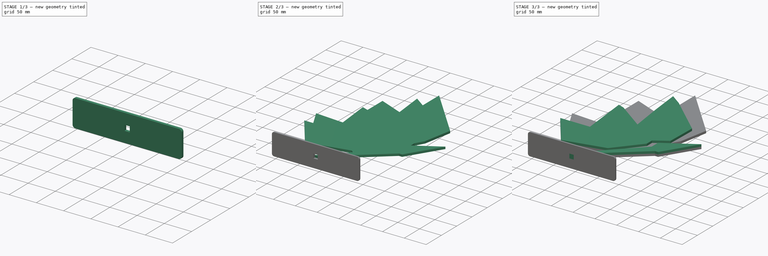
[diagram: build sequence overview — one tinted view per stage of 3, left to right]
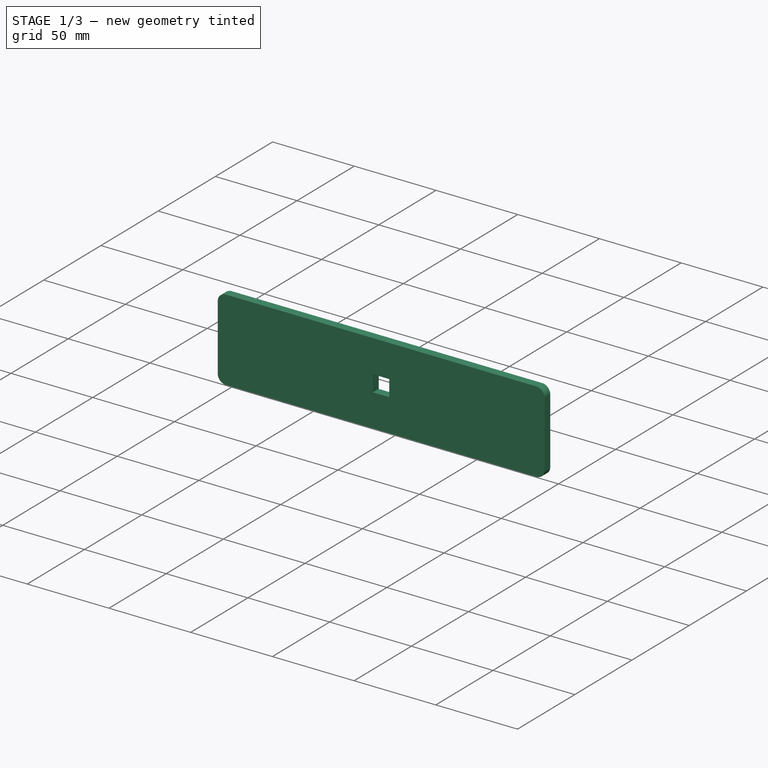
[diagram: stage 1 of 3 — iso view after this stage's code; geometry added in this stage tinted green]
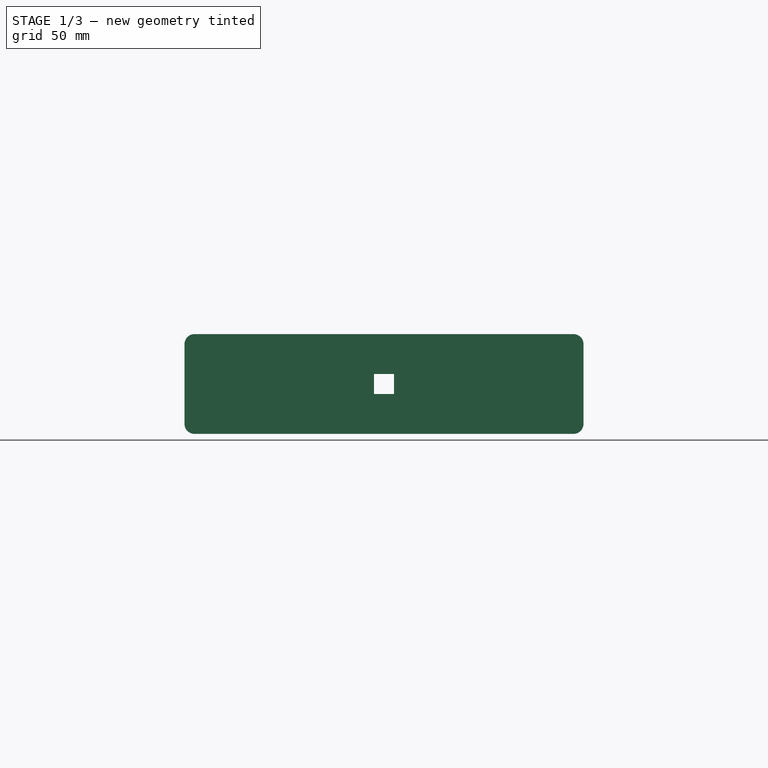
[diagram: stage 1 of 3 — front view after this stage's code; geometry added in this stage tinted green]
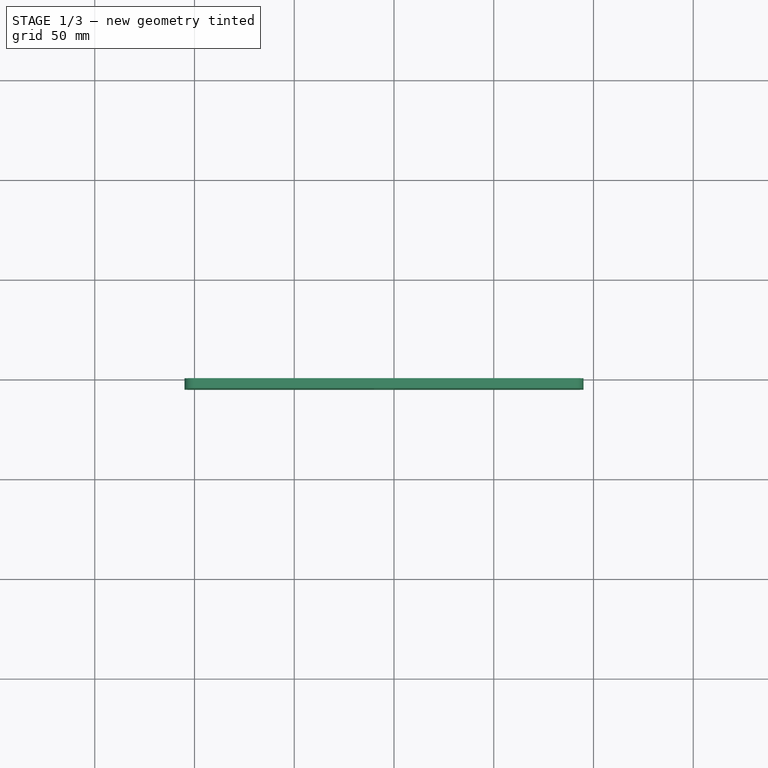
[diagram: stage 1 of 3 — top view after this stage's code; geometry added in this stage tinted green]
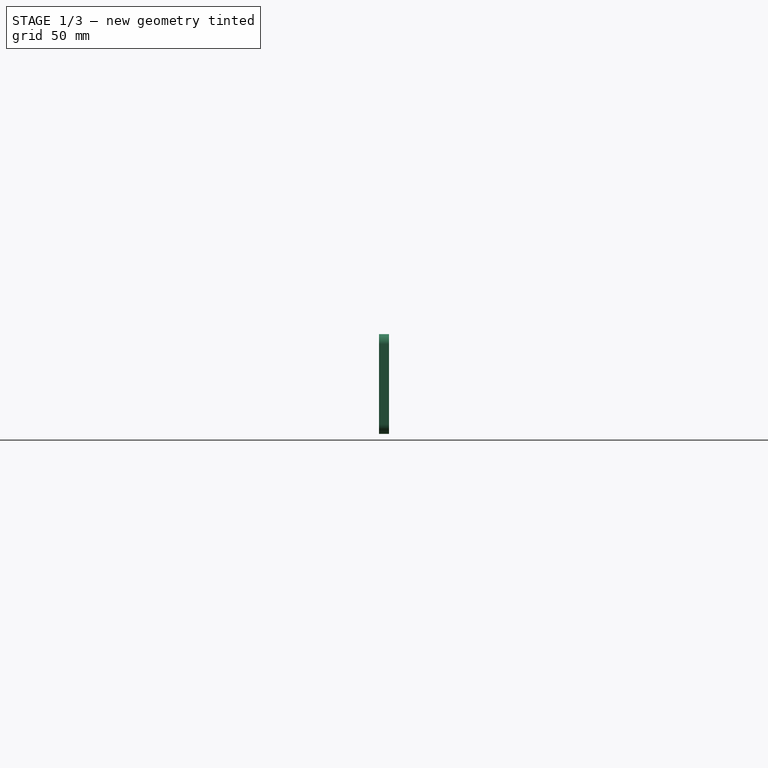
[diagram: stage 1 of 3 — right view after this stage's code; geometry added in this stage tinted green]
FCSTD DOCUMENT  (FreeCAD 0.21R33771 (Git))
Label: Project_Wingman_Monarch_Emblem
License: All rights reserved
LicenseURL: https://en.wikipedia.org/wiki/All_rights_reserved
objects: Sketcher::SketchObject×4, PartDesign::Pad×4, PartDesign::Body×2, PartDesign::Fillet×2, Image::ImagePlane×1
note: 18 computed .brp shape members not serialized (recipe doc carries the construction recipe); baked Part::Feature solids carry a one-line shape summary decoded from their .brp

FEATURE [PartDesign::Body] Body  label="MonarchBody"
  Group = -> [Sketch,Pad,Sketch001,Pad001,Sketch002,Pad002]
  Origin = -> Origin
  Tip = -> Pad002
FEATURE [Sketcher::SketchObject] Sketch003
  FullyConstrained = true
  MapMode = 5
  Placement = pos=(0,0,0) rot=(1,0,0;1.5708rad)
  Support = -> [XZ_Plane001]
  sketch-geometry (9):
    g0: LineSegment StartX=-2.7e-15 StartY=0 StartZ=0 EndX=-10 EndY=0 EndZ=0
    g1: LineSegment StartX=-10 StartY=0 StartZ=0 EndX=-10 EndY=10 EndZ=0
    g2: LineSegment StartX=-10 StartY=10 StartZ=0 EndX=-3.6e-15 EndY=10 EndZ=0
    g3: LineSegment StartX=-2.7e-15 StartY=10 StartZ=0 EndX=-2.7e-15 EndY=0 EndZ=0
    g4: GeomPoint X=-5 Y=5 Z=0
    g5: LineSegment StartX=-105 StartY=-20 StartZ=0 EndX=95 EndY=-20 EndZ=0
    g6: LineSegment StartX=95 StartY=-20 StartZ=0 EndX=95 EndY=30 EndZ=0
    g7: LineSegment StartX=95 StartY=30 StartZ=0 EndX=-105 EndY=30 EndZ=0
    g8: LineSegment StartX=-105 StartY=30 StartZ=0 EndX=-105 EndY=-20 EndZ=0
  constraints (23):
    c: Coincident(g0,g1)
    c: Coincident(g1,g2)
    c: Coincident(g2,g3)
    c: Coincident(g3,g0)
    c: Horizontal(g0)
    c: Horizontal(g2)
    c: Vertical(g1)
    c: Vertical(g3)
    c: Coincident(g0,g-1)
    c: Equal(g1,g2)
    c: DistanceX(g0,g0) = 10
    c: Symmetric(g1,g0,g4)
    c: Coincident(g5,g6)
    c: Coincident(g6,g7)
    c: Coincident(g7,g8)
    c: Coincident(g8,g5)
    c: Horizontal(g5)
    c: Horizontal(g7)
    c: Vertical(g6)
    c: Vertical(g8)
    c: Symmetric(g7,g5,g4)
    c: DistanceX(g5,g5) = 200
    c: DistanceY(g6,g6) = 50
FEATURE [PartDesign::Pad] Pad003  label="Stand"
  Direction = (0,-1,2e-16)
  Length = 5
  Length2 = 10
  Placement = pos=(0,0,0) rot=(1,0,0;1.5708rad)
  Profile = -> Sketch003
  ReferenceAxis = -> Sketch003 [N_Axis]
  Type = 0
FEATURE [PartDesign::Fillet] Fillet  label="CornerFillet"
  Base = -> Pad003 [Edge5,Edge8,Edge1,Edge2]
  BaseFeature = -> Pad003
  Placement = pos=(0,0,0) rot=(1,0,0;1.5708rad)
  Radius = 5
  SupportTransform = false
  UseAllEdges = false
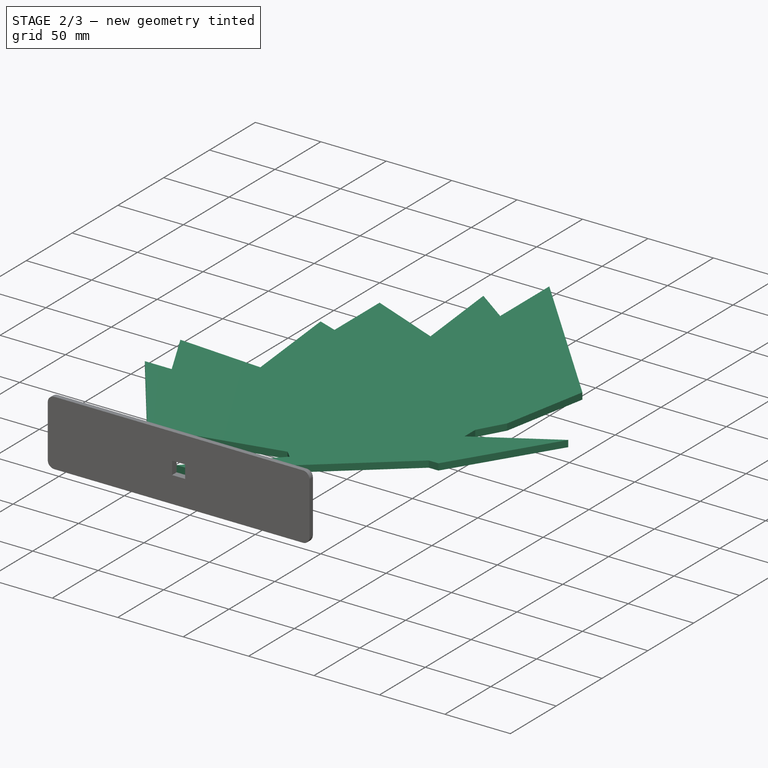
[diagram: stage 2 of 3 — iso view after this stage's code; geometry added in this stage tinted green]
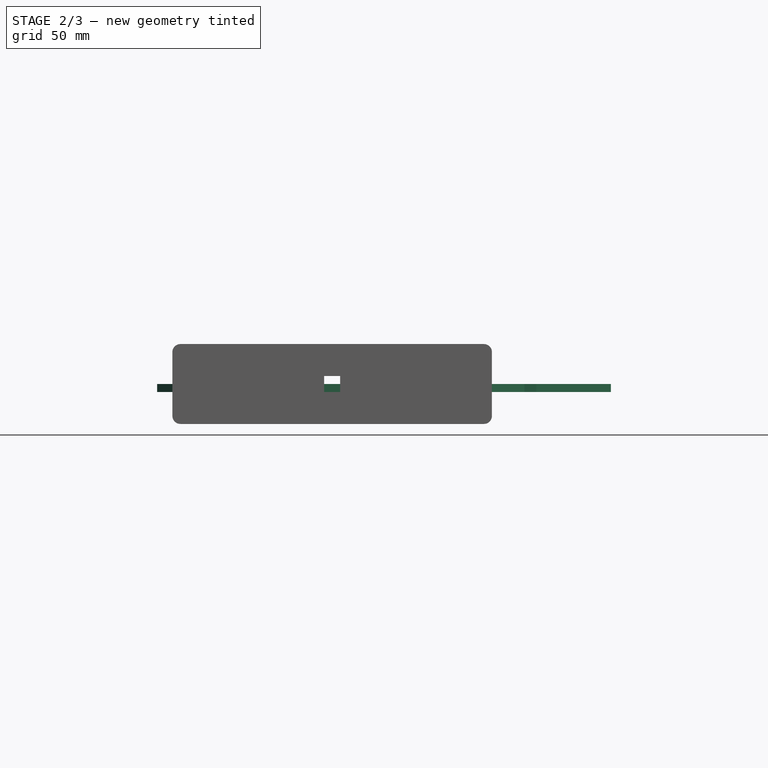
[diagram: stage 2 of 3 — front view after this stage's code; geometry added in this stage tinted green]
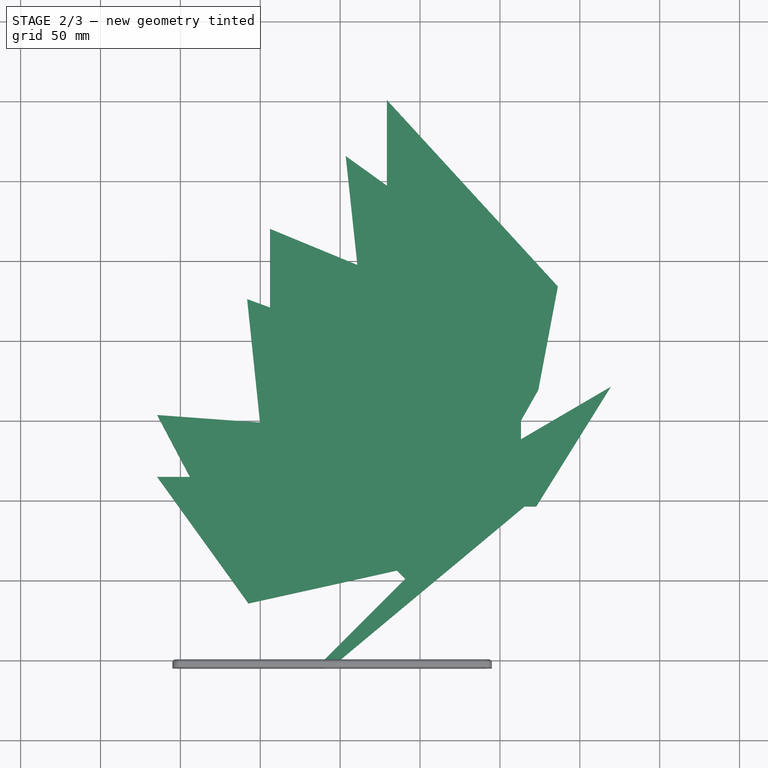
[diagram: stage 2 of 3 — top view after this stage's code; geometry added in this stage tinted green]
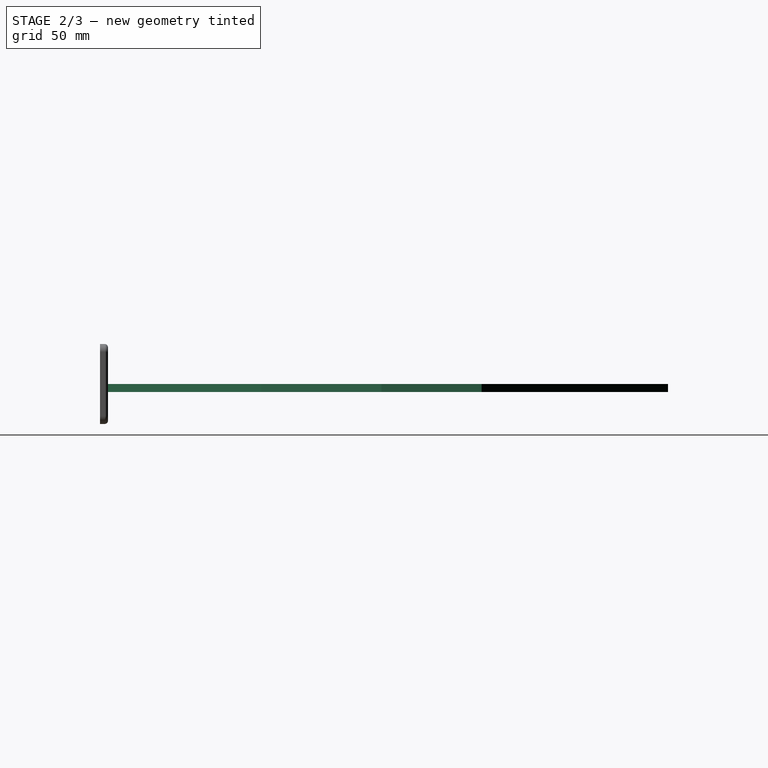
[diagram: stage 2 of 3 — right view after this stage's code; geometry added in this stage tinted green]
FEATURE [Image::ImagePlane] k1y02ft4k2461  label="Reference"
  Placement = pos=(27.5,175.7,0) rot=(0,0,1;0rad)
  XSize = 285.714
  YSize = 351.852
FEATURE [Sketcher::SketchObject] Sketch
  FullyConstrained = true
  MapMode = 5
  Support = -> [XY_Plane]
  sketch-geometry (23):
    g0: LineSegment StartX=0 StartY=0 StartZ=0 EndX=115.367 EndY=96.0859 EndZ=0
    g1: LineSegment StartX=115.367 StartY=96.0859 StartZ=0 EndX=122.707 EndY=96.0859 EndZ=0
    g2: LineSegment StartX=122.707 StartY=96.0859 StartZ=0 EndX=169.442 EndY=171.11 EndZ=0
    g3: LineSegment StartX=169.442 StartY=171.11 StartZ=0 EndX=113.177 EndY=138.205 EndZ=0
    g4: LineSegment StartX=113.177 StartY=138.205 StartZ=0 EndX=113.177 EndY=149.905 EndZ=0
    g5: LineSegment StartX=113.177 StartY=149.905 StartZ=0 EndX=124.051 EndY=169.157 EndZ=0
    g6: LineSegment StartX=124.051 StartY=169.157 StartZ=0 EndX=136.266 EndY=233.864 EndZ=0
    g7: LineSegment StartX=136.266 StartY=233.864 StartZ=0 EndX=29.2523 EndY=350.567 EndZ=0
    g8: LineSegment StartX=29.2523 StartY=350.567 StartZ=0 EndX=29.2523 EndY=296.967 EndZ=0
    g9: LineSegment StartX=29.2523 StartY=296.967 StartZ=0 EndX=3.47352 EndY=315.484 EndZ=0
    g10: LineSegment StartX=3.47352 StartY=315.484 StartZ=0 EndX=10.7709 EndY=247.314 EndZ=0
    g11: LineSegment StartX=10.7709 StartY=247.314 StartZ=0 EndX=-43.9148 EndY=269.909 EndZ=0
    g12: LineSegment StartX=-43.9148 StartY=269.909 StartZ=0 EndX=-43.9148 EndY=220.669 EndZ=0
    g13: LineSegment StartX=-43.9148 StartY=220.669 StartZ=0 EndX=-58.2298 EndY=225.956 EndZ=0
    g14: LineSegment StartX=-58.2298 StartY=225.956 StartZ=0 EndX=-50.1598 EndY=148.656 EndZ=0
    g15: LineSegment StartX=-50.1598 StartY=148.656 StartZ=0 EndX=-114.557 EndY=153.374 EndZ=0
    g16: LineSegment StartX=-114.557 StartY=153.374 StartZ=0 EndX=-94.0801 EndY=114.667 EndZ=0
    g17: LineSegment StartX=-94.0801 StartY=114.667 StartZ=0 EndX=-114.54 EndY=114.667 EndZ=0
    g18: LineSegment StartX=-114.54 StartY=114.667 StartZ=0 EndX=-57.3838 EndY=35.4175 EndZ=0
    g19: LineSegment StartX=-57.3838 StartY=35.4175 StartZ=0 EndX=35.5347 EndY=56.0341 EndZ=0
    g20: LineSegment StartX=35.5347 StartY=56.0341 StartZ=0 EndX=40.7844 EndY=50.7844 EndZ=0
    g21: LineSegment StartX=40.7844 StartY=50.7844 StartZ=0 EndX=-10 EndY=0 EndZ=0
    g22: LineSegment StartX=-10 StartY=0 StartZ=0 EndX=0 EndY=0 EndZ=0
  constraints (68):
    c: Coincident(g-1,g0)
    c: Coincident(g0,g1)
    c: Horizontal(g1)
    c: Coincident(g1,g2)
    c: Coincident(g2,g3)
    c: Coincident(g3,g4)
    c: Vertical(g4)
    c: Coincident(g4,g5)
    c: Coincident(g5,g6)
    c: Coincident(g6,g7)
    c: Coincident(g7,g8)
    c: Vertical(g8)
    c: Coincident(g8,g9)
    c: Coincident(g9,g10)
    c: Coincident(g10,g11)
    c: Coincident(g11,g12)
    c: Vertical(g12)
    c: Coincident(g12,g13)
    c: Coincident(g13,g14)
    c: Coincident(g14,g15)
    c: Coincident(g15,g16)
    c: Coincident(g16,g17)
    c: Horizontal(g17)
    c: Coincident(g17,g18)
    c: Coincident(g18,g19)
    c: Coincident(g19,g20)
    c: Coincident(g20,g21)
    c: PointOnObject(g21,g-1)
    c: Coincident(g21,g22)
    c: Coincident(g22,g0)
    c: Angle(g20,g21) = 1.5708
    c: Angle(g22,g21) = 0.785398
    c: Angle(g19,g20) = 2.13785
    c: Distance(g21) = 71.82
    c: Distance(g22) = 10
    c: Angle(g0,g22) = 2.44713
    c: Distance(g0) = 150.14
    c: Angle(g2,g1) = 2.12791
    c: Distance(g2) = 88.39
    c: Angle(g3,g2) = 0.484503
    c: Distance(g3) = 65.18
    c: Angle(g4,g5) = 2.62742
    c: Distance(g4) = 11.7
    c: Distance(g5) = 22.11
    c: Angle(g6,g5) = 2.81399
    c: Distance(g6) = 65.85
    c: Angle(g7,g6) = 2.2129
    c: Distance(g7) = 158.34
    c: Distance(g8) = 53.6
    c: Distance(g1) = 7.34
    c: Angle(g8,g9) = 0.947888
    c: Angle(g10,g9) = 0.841249
    c: Distance(g9) = 31.74
    c: Angle(g10,g11) = 1.07233
    c: Distance(g10) = 68.56
    c: Distance(g11) = 59.17
    c: Distance(g12) = 49.24
    c: Angle(g12,g13) = 1.21702
    c: Distance(g13) = 15.26
    c: Angle(g14,g13) = 1.113
    c: Distance(g14) = 77.72
    c: Angle(g14,g15) = 1.39365
    c: Distance(g15) = 64.57
    c: Angle(g16,g15) = 1.01107
    c: Distance(g16) = 43.79
    c: Angle(g18,g17) = 0.945968
    c: Distance(g17) = 20.46
    c: Distance(g18) = 97.71
FEATURE [PartDesign::Pad] Pad  label="MainBody"
  Direction = (0,0,1)
  Length = 5
  Length2 = 10
  Profile = -> Sketch
  ReferenceAxis = -> Sketch [N_Axis]
  Type = 0
FEATURE [PartDesign::Fillet] Fillet001  label="TopFillet"
  Base = -> Fillet [Edge6,Edge1,Edge5,Edge7,Edge9,Edge11,Edge10,Edge8]
  BaseFeature = -> Fillet
  Placement = pos=(0,0,0) rot=(1,0,0;1.5708rad)
  Radius = 2
  SupportTransform = false
  UseAllEdges = false
FEATURE [PartDesign::Body] Body001  label="StandBody"
  Group = -> [Sketch003,Pad003,Fillet,Fillet001]
  Origin = -> Origin001
  Tip = -> Fillet001
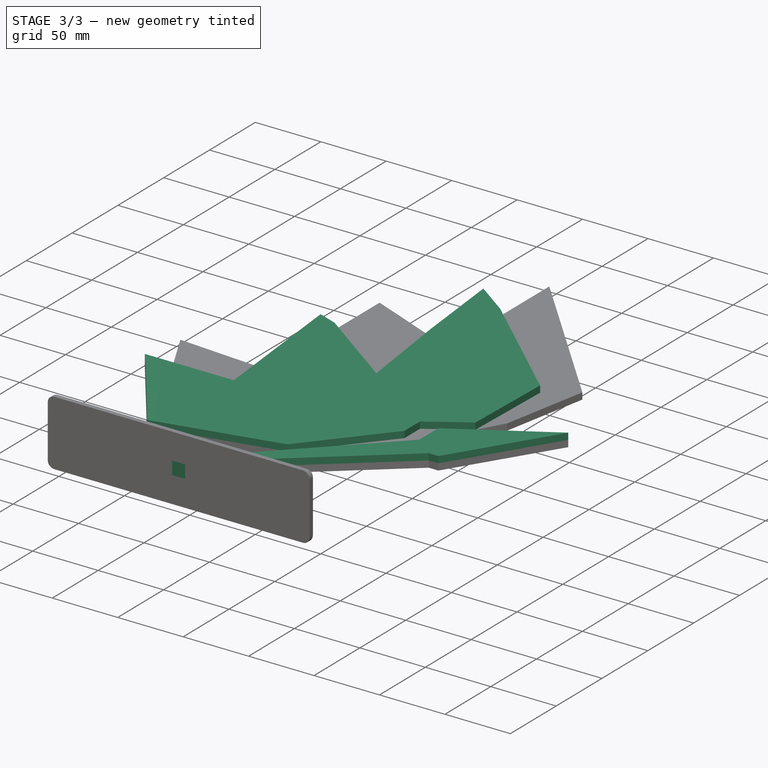
[diagram: stage 3 of 3 — iso view after this stage's code; geometry added in this stage tinted green]
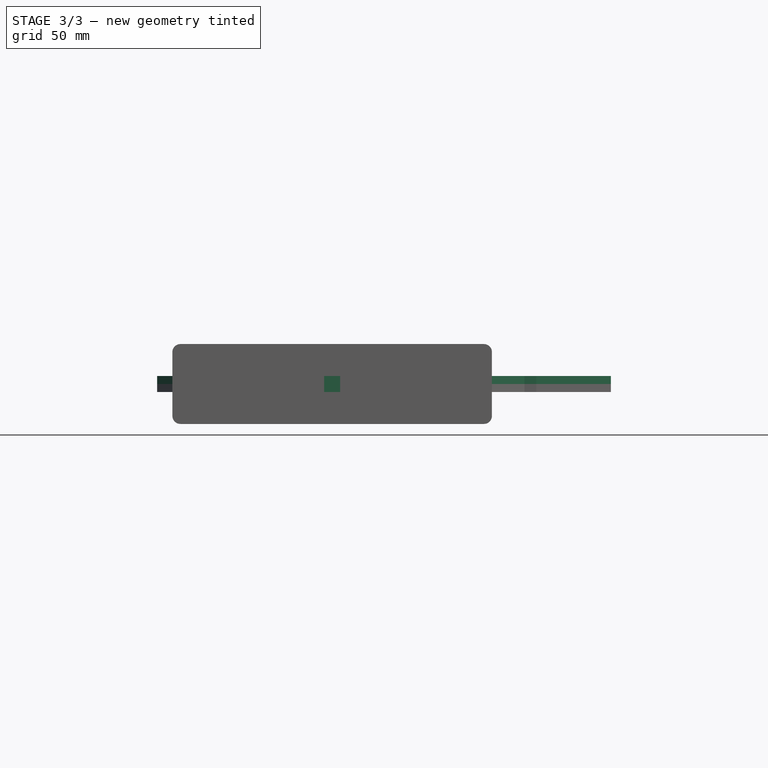
[diagram: stage 3 of 3 — front view after this stage's code; geometry added in this stage tinted green]
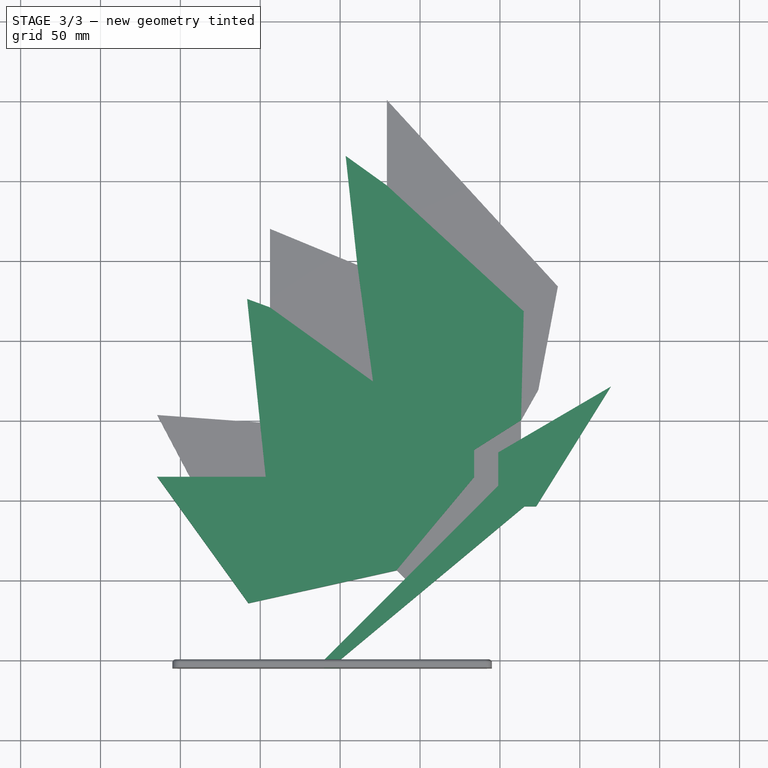
[diagram: stage 3 of 3 — top view after this stage's code; geometry added in this stage tinted green]
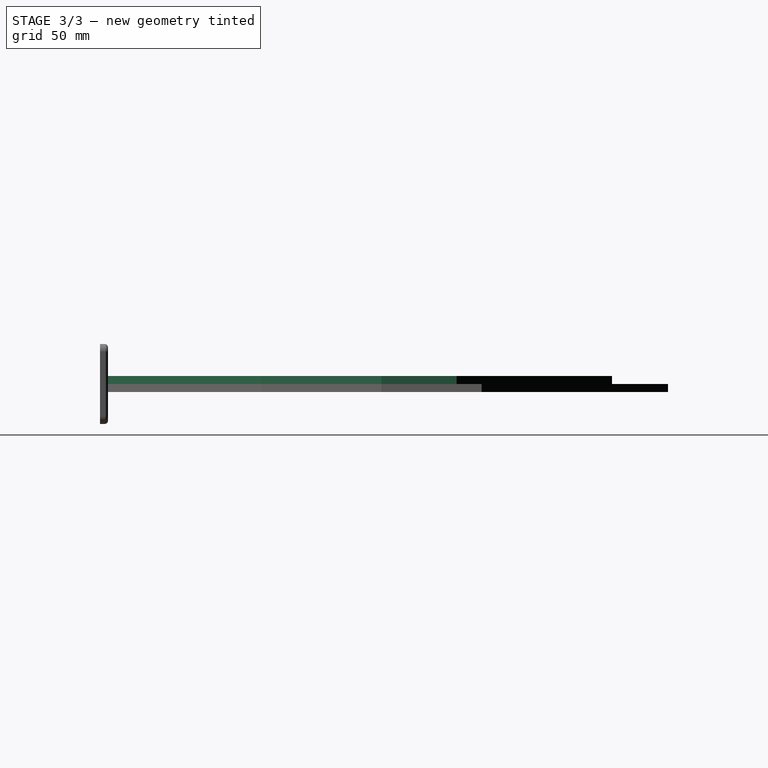
[diagram: stage 3 of 3 — right view after this stage's code; geometry added in this stage tinted green]
FEATURE [Sketcher::SketchObject] Sketch001
  ExternalGeometry = -> [Pad]
  FullyConstrained = true
  MapMode = 5
  Placement = pos=(0,0,5) rot=(0,0,1;0rad)
  Support = -> [Pad]
  sketch-geometry (23):
    g0: LineSegment StartX=29.2523 StartY=296.967 StartZ=0 EndX=3.47352 EndY=315.484 EndZ=0
    g1: LineSegment StartX=3.47352 StartY=315.484 StartZ=0 EndX=10.7709 EndY=247.314 EndZ=0
    g2: LineSegment StartX=-43.9148 StartY=220.669 StartZ=0 EndX=-58.2298 EndY=225.956 EndZ=0
    g3: LineSegment StartX=-58.2298 StartY=225.956 StartZ=0 EndX=-50.1598 EndY=148.656 EndZ=0
    g4: LineSegment StartX=-114.54 StartY=114.667 StartZ=0 EndX=-94.0801 EndY=114.667 EndZ=0
    g5: LineSegment StartX=-94.0801 StartY=114.667 StartZ=0 EndX=-46.6113 EndY=114.667 EndZ=0
    g6: LineSegment StartX=-50.1598 StartY=148.656 StartZ=0 EndX=-46.6113 EndY=114.667 EndZ=0
    g7: LineSegment StartX=-43.9148 StartY=220.669 StartZ=0 EndX=20.584 EndY=174.254 EndZ=0
    g8: LineSegment StartX=10.7709 StartY=247.314 StartZ=0 EndX=20.584 EndY=174.254 EndZ=0
    g9: LineSegment StartX=29.2523 StartY=296.967 StartZ=0 EndX=114.882 EndY=218.226 EndZ=0
    g10: LineSegment StartX=114.882 StartY=218.226 StartZ=0 EndX=113.192 EndY=150.027 EndZ=0
    g11: LineSegment StartX=-114.54 StartY=114.667 StartZ=0 EndX=-57.3838 EndY=35.4175 EndZ=0
    g12: LineSegment StartX=-57.3838 StartY=35.4175 StartZ=0 EndX=35.1939 EndY=56.0602 EndZ=0
    g13: LineSegment StartX=35.1939 StartY=56.0602 StartZ=0 EndX=83.884 EndY=114.479 EndZ=0
    g14: LineSegment StartX=83.884 StartY=114.479 StartZ=0 EndX=83.884 EndY=131.449 EndZ=0
    g15: LineSegment StartX=83.884 StartY=131.449 StartZ=0 EndX=113.192 EndY=150.027 EndZ=0
    g16: LineSegment StartX=-10 StartY=0 StartZ=0 EndX=0 EndY=0 EndZ=0
    g17: LineSegment StartX=0 StartY=0 StartZ=0 EndX=115.367 EndY=96.0859 EndZ=0
    g18: LineSegment StartX=115.367 StartY=96.0859 StartZ=0 EndX=122.707 EndY=96.0859 EndZ=0
    g19: LineSegment StartX=122.707 StartY=96.0859 StartZ=0 EndX=169.442 EndY=171.11 EndZ=0
    g20: LineSegment StartX=169.442 StartY=171.11 StartZ=0 EndX=98.9599 EndY=129.891 EndZ=0
    g21: LineSegment StartX=98.9599 StartY=129.891 StartZ=0 EndX=98.9599 EndY=109.098 EndZ=0
    g22: LineSegment StartX=98.9599 StartY=109.098 StartZ=0 EndX=-10 EndY=0 EndZ=0
  constraints (55):
    c: Coincident(g0,g-8)
    c: Coincident(g0,g-8)
    c: Coincident(g1,g0)
    c: Coincident(g1,g-7)
    c: Coincident(g2,g-6)
    c: Coincident(g2,g-6)
    c: Coincident(g3,g2)
    c: Coincident(g3,g-5)
    c: Coincident(g4,g-4)
    c: Coincident(g4,g-4)
    c: Coincident(g5,g4)
    c: Horizontal(g5)
    c: Coincident(g6,g3)
    c: Coincident(g6,g5)
    c: Parallel(g6,g3)
    c: Coincident(g7,g2)
    c: Coincident(g8,g1)
    c: Coincident(g8,g7)
    c: Angle(g8,g1) = 3.11471
    c: Angle(g2,g7) = 2.87159
    c: Coincident(g9,g0)
    c: Coincident(g10,g9)
    c: Angle(g0,g9) = 3.02099
    c: Angle(g9,g10) = 2.28952
    c: Coincident(g11,g4)
    c: Coincident(g11,g-3)
    c: Coincident(g11,g12)
    c: Coincident(g12,g13)
    c: Coincident(g13,g14)
    c: Vertical(g14)
    c: Coincident(g14,g15)
    c: Coincident(g15,g10)
    c: Angle(g10,g15) = 2.16054
    c: Angle(g13,g12) = 2.485
    c: Angle(g12,g11) = 1.97624
    c: Distance(g14) = 16.97
    c: Distance(g9) = 116.33
    c: Distance(g10) = 68.22
    c: Distance(g15) = 34.7
    c: Coincident(g-9,g16)
    c: Coincident(g16,g-10)
    c: Coincident(g16,g17)
    c: Coincident(g17,g-11)
    c: Coincident(g17,g18)
    c: Coincident(g18,g-12)
    c: Coincident(g18,g19)
    c: Coincident(g19,g-13)
    c: Coincident(g19,g20)
    c: PointOnObject(g-13,g20)
    c: Coincident(g21,g20)
    c: Vertical(g21)
    c: Distance(g20) = 81.65
    c: Coincident(g22,g21)
    c: Coincident(g22,g16)
    c: Distance(g22) = 154.19
FEATURE [PartDesign::Pad] Pad001  label="Front"
  BaseFeature = -> Pad
  Direction = (0,0,1)
  Length = 5
  Length2 = 10
  Profile = -> Sketch001
  ReferenceAxis = -> Sketch001 [N_Axis]
  Type = 0
FEATURE [Sketcher::SketchObject] Sketch002
  ExternalGeometry = -> [Pad001]
  FullyConstrained = true
  MapMode = 5
  Placement = pos=(0,0,0) rot=(1,0,0;1.5708rad)
  Support = -> [Pad001]
  sketch-geometry (4):
    g0: LineSegment StartX=-10 StartY=0 StartZ=0 EndX=0 EndY=0 EndZ=0
    g1: LineSegment StartX=0 StartY=0 StartZ=0 EndX=0 EndY=10 EndZ=0
    g2: LineSegment StartX=0 StartY=10 StartZ=0 EndX=-10 EndY=10 EndZ=0
    g3: LineSegment StartX=-10 StartY=10 StartZ=0 EndX=-10 EndY=0 EndZ=0
  constraints (10):
    c: Coincident(g0,g1)
    c: Coincident(g1,g2)
    c: Coincident(g2,g3)
    c: Coincident(g3,g0)
    c: Horizontal(g0)
    c: Horizontal(g2)
    c: Vertical(g1)
    c: Vertical(g3)
    c: Coincident(g0,g-3)
    c: Coincident(g1,g-4)
FEATURE [PartDesign::Pad] Pad002  label="Foot"
  BaseFeature = -> Pad001
  Direction = (0,-1,2e-16)
  Length = 5
  Length2 = 10
  Profile = -> Sketch002
  ReferenceAxis = -> Sketch002 [N_Axis]
  Type = 0
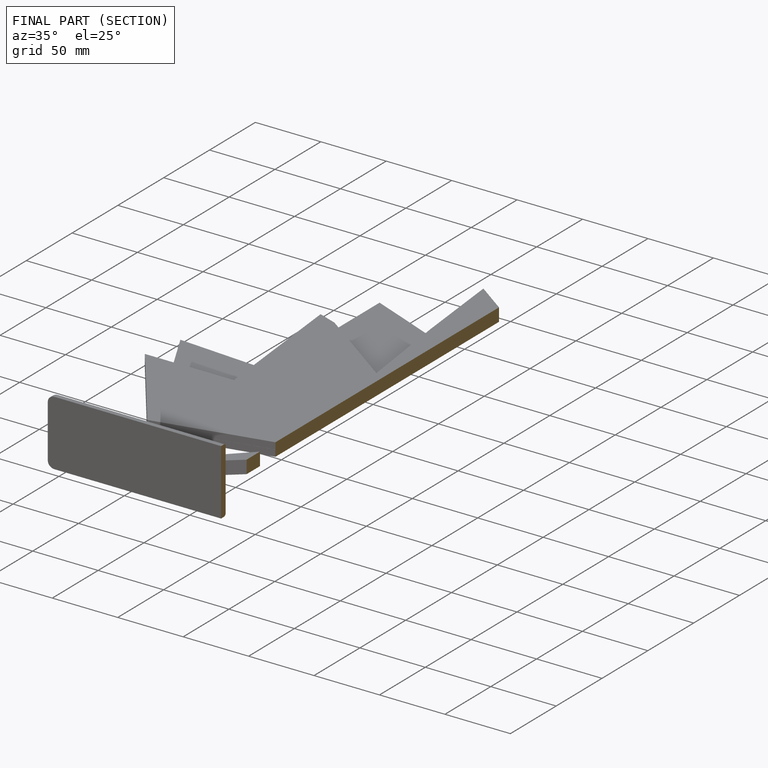
[diagram: finished part — half-section view (interior)]
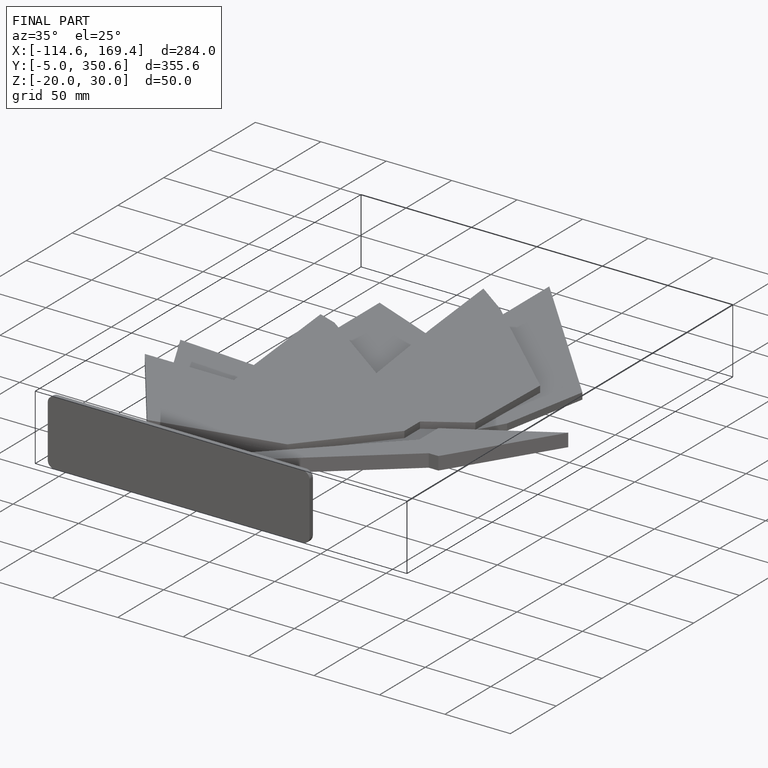
[diagram: finished part — iso view with bounding-box wireframe]
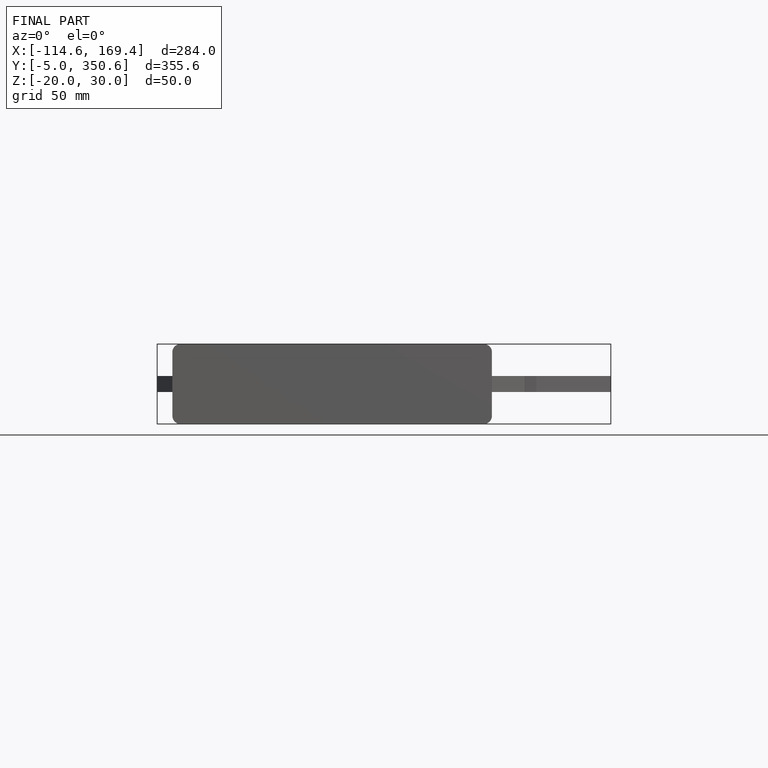
[diagram: finished part — front view with bounding-box wireframe]
